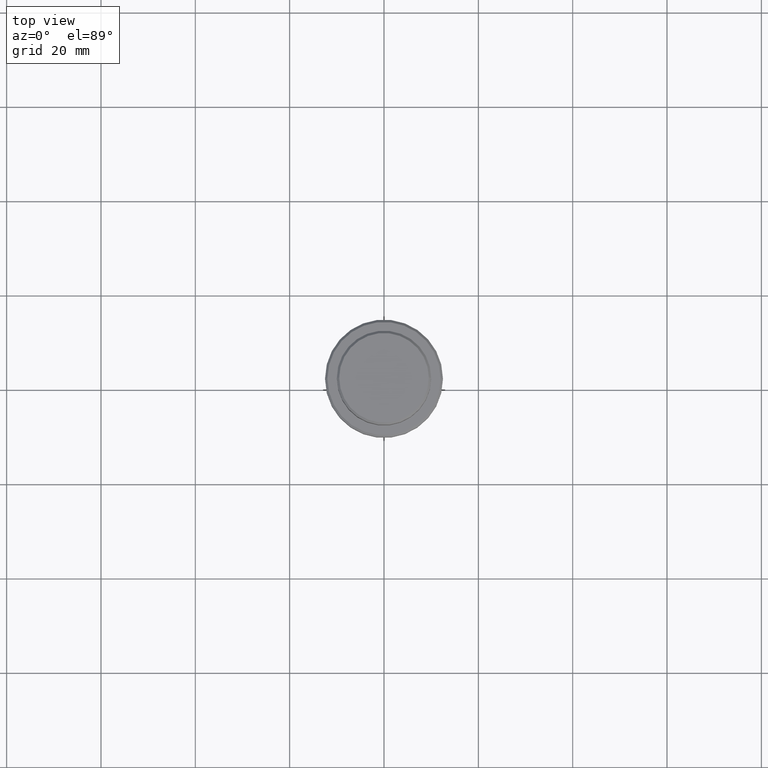
[diagram: clean part render]
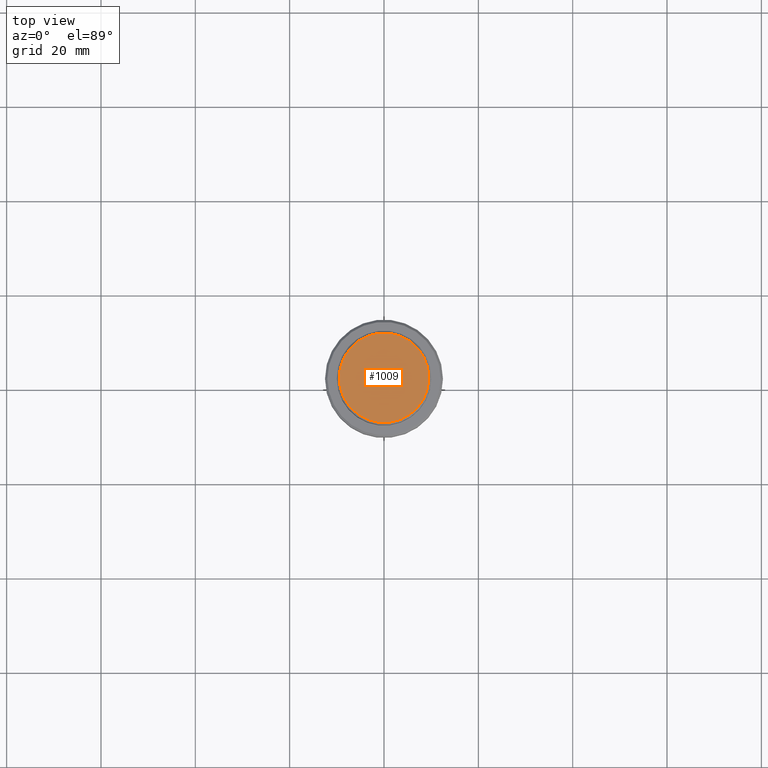
[diagram: same view with one face highlighted and labeled with its STEP entity id]
A machine part, top view. The second image highlights one B-rep face of the part: STEP entity #1009.
In plain terms, the highlighted planar face has unit normal (0, -0, 1).
Its self-contained STEP definition (entity closure, byte-faithful):
#68 = DIRECTION ( 'NONE',  ( 1.000000000000000000, 0.000000000000000000, 0.000000000000000000 ) ) ;
#77 = CARTESIAN_POINT ( 'NONE',  ( 0.000000000000000000, 0.000000000000000000, 0.000000000000000000 ) ) ;
#220 = VERTEX_POINT ( 'NONE', #1087 ) ;
#338 = CIRCLE ( 'NONE', #1080, 9.500000000000008882 ) ;
#383 = CARTESIAN_POINT ( 'NONE',  ( 0.000000000000000000, 0.000000000000000000, 0.000000000000000000 ) ) ;
#430 = ORIENTED_EDGE ( 'NONE', *, *, #626, .T. ) ;
#484 = AXIS2_PLACEMENT_3D ( 'NONE', #383, #638, #841 ) ;
#552 = DIRECTION ( 'NONE',  ( 0.000000000000000000, -0.000000000000000000, 1.000000000000000000 ) ) ;
#626 = EDGE_CURVE ( 'NONE', #881, #220, #338, .T. ) ;
#638 = DIRECTION ( 'NONE',  ( -0.000000000000000000, -0.000000000000000000, 1.000000000000000000 ) ) ;
#748 = DIRECTION ( 'NONE',  ( 1.000000000000000000, 0.000000000000000000, 0.000000000000000000 ) ) ;
#749 = CARTESIAN_POINT ( 'NONE',  ( 0.000000000000000000, 0.000000000000000000, 0.000000000000000000 ) ) ;
#826 = CIRCLE ( 'NONE', #484, 9.500000000000008882 ) ;
#832 = EDGE_CURVE ( 'NONE', #220, #881, #826, .T. ) ;
#838 = CARTESIAN_POINT ( 'NONE',  ( -9.500000000000008882, 0.000000000000000000, 0.000000000000000000 ) ) ;
#841 = DIRECTION ( 'NONE',  ( 1.000000000000000000, 0.000000000000000000, 0.000000000000000000 ) ) ;
#881 = VERTEX_POINT ( 'NONE', #838 ) ;
#954 = AXIS2_PLACEMENT_3D ( 'NONE', #77, #552, #748 ) ;
#989 = ORIENTED_EDGE ( 'NONE', *, *, #832, .T. ) ;
#1009 = ADVANCED_FACE ( 'NONE', ( #1089 ), #1075, .T. ) ;
#1075 = PLANE ( 'NONE',  #954 ) ;
#1080 = AXIS2_PLACEMENT_3D ( 'NONE', #749, #1168, #68 ) ;
#1087 = CARTESIAN_POINT ( 'NONE',  ( 9.500000000000008882, 1.194030629168669864E-15, 0.000000000000000000 ) ) ;
#1089 = FACE_OUTER_BOUND ( 'NONE', #1313, .T. ) ;
#1168 = DIRECTION ( 'NONE',  ( -0.000000000000000000, -0.000000000000000000, 1.000000000000000000 ) ) ;
#1313 = EDGE_LOOP ( 'NONE', ( #430, #989 ) ) ;